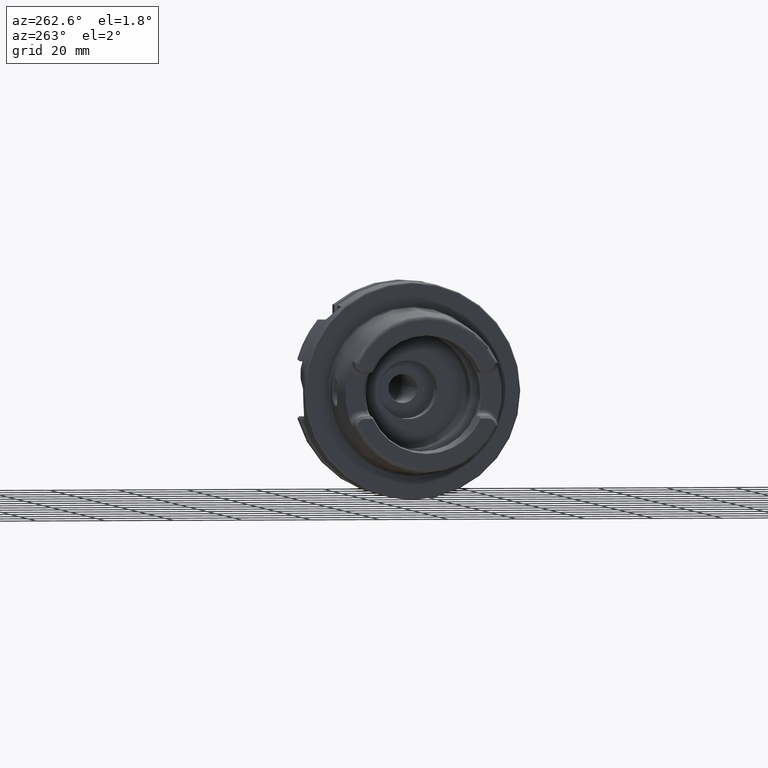
[diagram: clean part render]
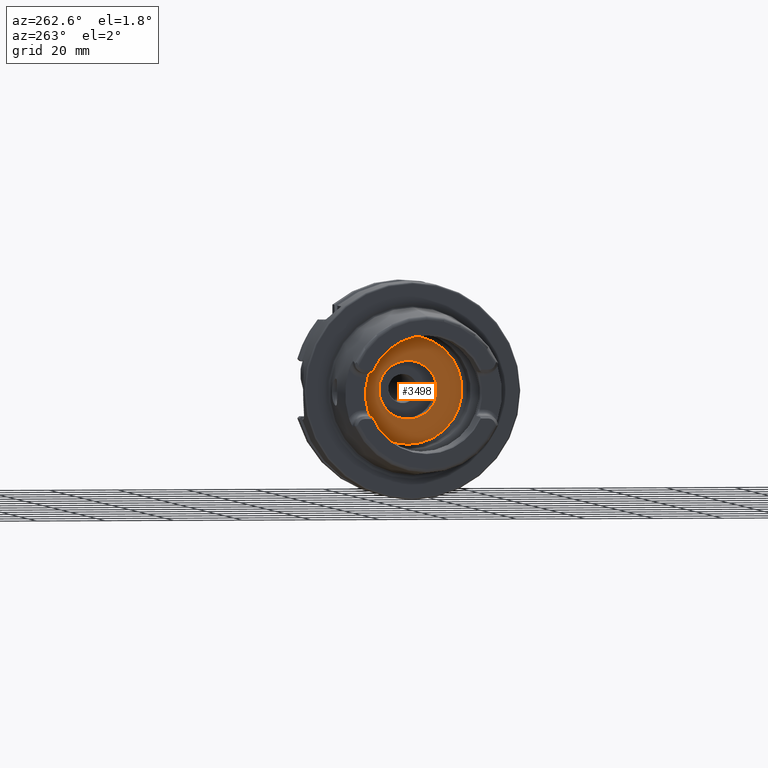
[diagram: same view with one face highlighted and labeled with its STEP entity id]
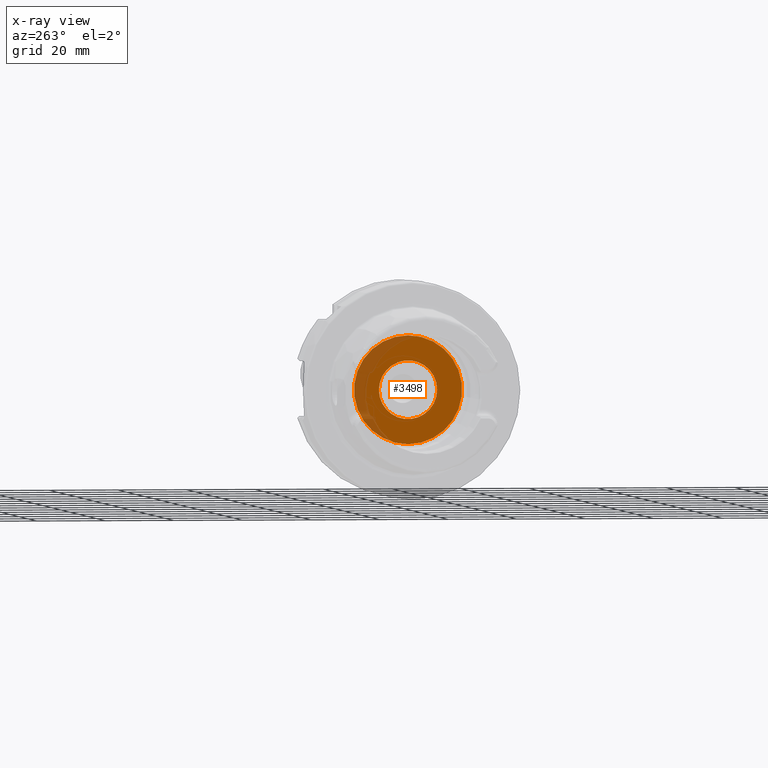
[diagram: x-ray of the same camera — body ghosted, the highlighted face saturated]
A machine part, auxiliary view. The second image highlights one B-rep face of the part: STEP entity #3498.
The next image is the same camera in x-ray: the body ghosted, the highlighted face saturated — about 20% of this face is hidden behind the body in this view.
In plain terms, the highlighted planar face has unit normal (1, 0, 0).
Its self-contained STEP definition (entity closure, byte-faithful):
#338=CARTESIAN_POINT('',(1.E1,0.E0,0.E0));
#339=DIRECTION('',(-1.E0,0.E0,0.E0));
#340=DIRECTION('',(0.E0,0.E0,-1.E0));
#341=AXIS2_PLACEMENT_3D('',#338,#339,#340);
#348=CARTESIAN_POINT('',(1.E1,0.E0,0.E0));
#349=DIRECTION('',(1.E0,0.E0,0.E0));
#350=DIRECTION('',(0.E0,0.E0,-1.E0));
#351=AXIS2_PLACEMENT_3D('',#348,#349,#350);
#353=CARTESIAN_POINT('',(1.E1,0.E0,0.E0));
#354=DIRECTION('',(-1.E0,0.E0,0.E0));
#355=DIRECTION('',(0.E0,1.E0,0.E0));
#356=AXIS2_PLACEMENT_3D('',#353,#354,#355);
#358=CARTESIAN_POINT('',(1.E1,0.E0,0.E0));
#359=DIRECTION('',(-1.E0,0.E0,0.E0));
#360=DIRECTION('',(0.E0,-1.E0,0.E0));
#361=AXIS2_PLACEMENT_3D('',#358,#359,#360);
#2723=CARTESIAN_POINT('',(1.E1,0.E0,-1.575E1));
#2724=CARTESIAN_POINT('',(1.E1,0.E0,1.575E1));
#2725=VERTEX_POINT('',#2723);
#2726=VERTEX_POINT('',#2724);
#2727=CARTESIAN_POINT('',(1.E1,8.5E0,0.E0));
#2728=CARTESIAN_POINT('',(1.E1,-8.5E0,0.E0));
#2729=VERTEX_POINT('',#2727);
#2730=VERTEX_POINT('',#2728);
#3483=CARTESIAN_POINT('',(1.E1,0.E0,0.E0));
#3484=DIRECTION('',(1.E0,0.E0,0.E0));
#3485=DIRECTION('',(0.E0,0.E0,1.E0));
#3486=AXIS2_PLACEMENT_3D('',#3483,#3484,#3485);
#3487=PLANE('',#3486);
#3488=ORIENTED_EDGE('',*,*,#3463,.F.);
#3489=ORIENTED_EDGE('',*,*,#3477,.T.);
#3490=EDGE_LOOP('',(#3488,#3489));
#3491=FACE_OUTER_BOUND('',#3490,.F.);
#3493=ORIENTED_EDGE('',*,*,#3492,.T.);
#3495=ORIENTED_EDGE('',*,*,#3494,.T.);
#3496=EDGE_LOOP('',(#3493,#3495));
#3497=FACE_BOUND('',#3496,.F.);
#3498=ADVANCED_FACE('',(#3491,#3497),#3487,.F.);
#342=CIRCLE('',#341,1.575E1);
#352=CIRCLE('',#351,1.575E1);
#357=CIRCLE('',#356,8.5E0);
#362=CIRCLE('',#361,8.5E0);
#3463=EDGE_CURVE('',#2725,#2726,#342,.T.);
#3477=EDGE_CURVE('',#2725,#2726,#352,.T.);
#3492=EDGE_CURVE('',#2729,#2730,#357,.T.);
#3494=EDGE_CURVE('',#2730,#2729,#362,.T.);